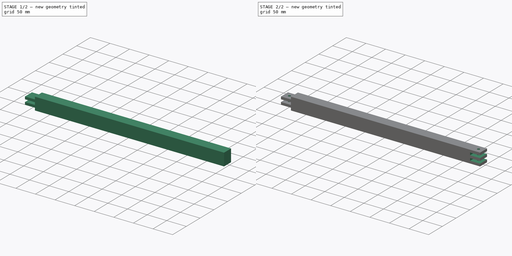
[diagram: build sequence overview — one tinted view per stage of 2, left to right]
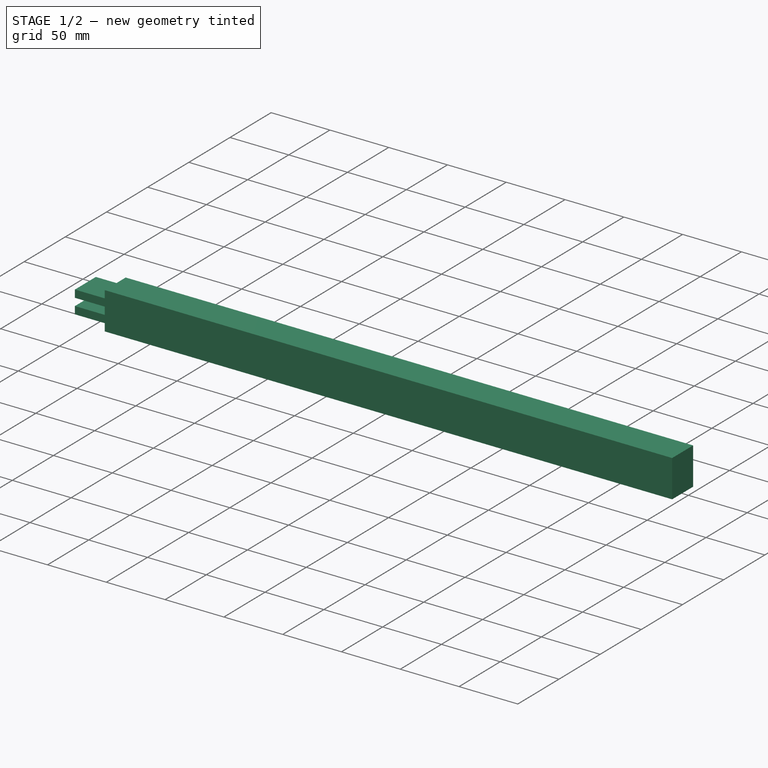
[diagram: stage 1 of 2 — iso view after this stage's code; geometry added in this stage tinted green]
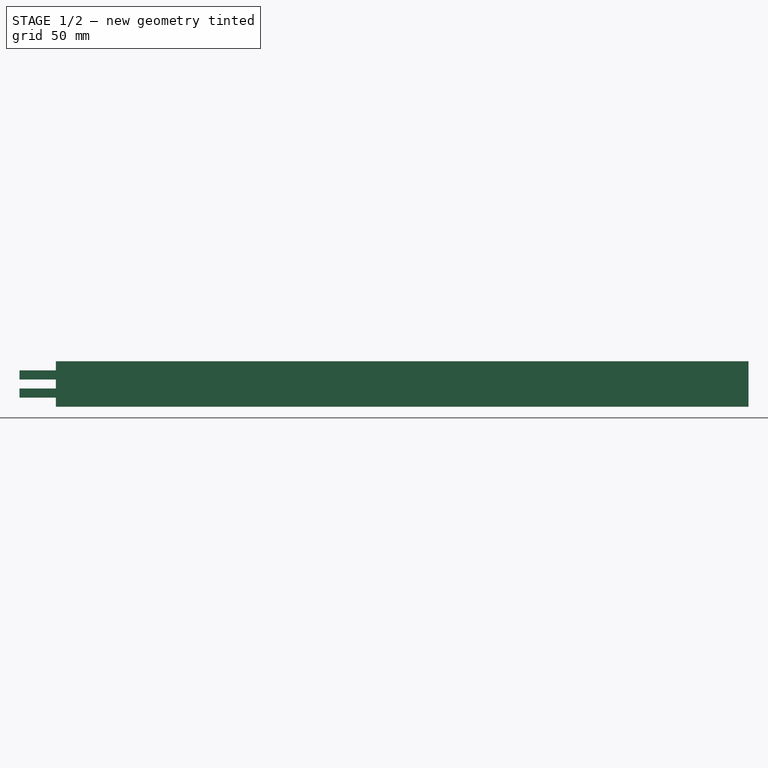
[diagram: stage 1 of 2 — front view after this stage's code; geometry added in this stage tinted green]
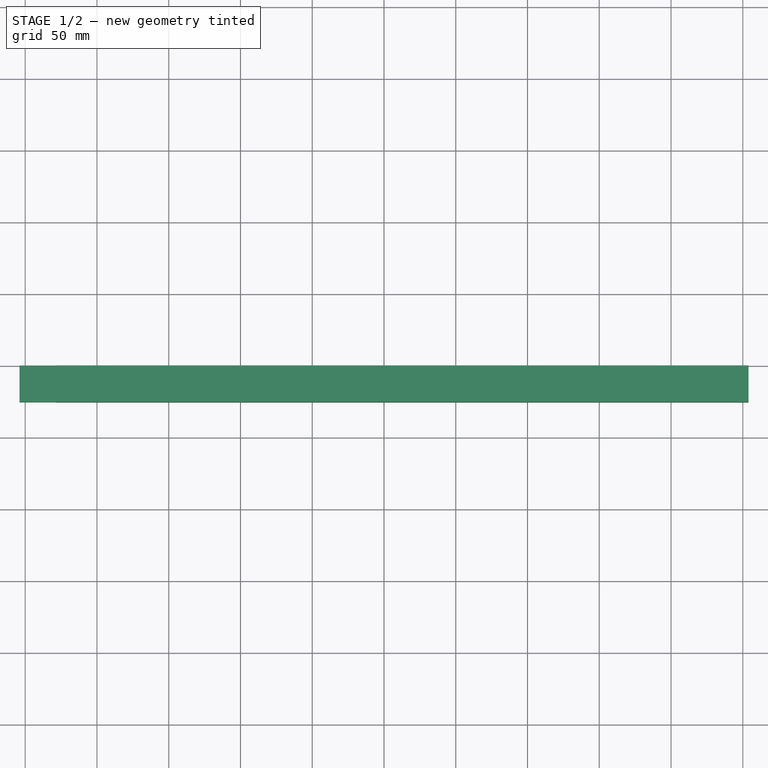
[diagram: stage 1 of 2 — top view after this stage's code; geometry added in this stage tinted green]
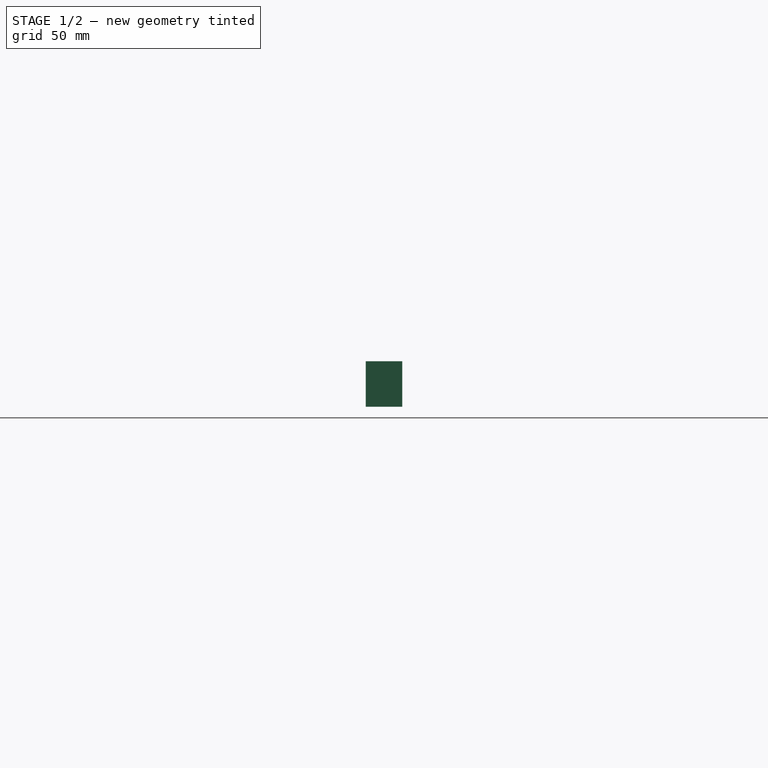
[diagram: stage 1 of 2 — right view after this stage's code; geometry added in this stage tinted green]
FCSTD DOCUMENT  (FreeCAD 0.20R29603 (Git))
Label: seat_side_bar
License: Creative Commons Attribution
LicenseURL: http://creativecommons.org/licenses/by/4.0/
objects: Sketcher::SketchObject×4, PartDesign::Pocket×3, PartDesign::Pad×1, PartDesign::Body×1
note: 13 computed .brp shape members not serialized (recipe doc carries the construction recipe); baked Part::Feature solids carry a one-line shape summary decoded from their .brp

FEATURE [Sketcher::SketchObject] Sketch
  FullyConstrained = true
  MapMode = 5
  Placement = pos=(0,0,0) rot=(1,0,0;1.5708rad)
  Support = -> [XZ_Plane]
  sketch-geometry (5):
    g0: LineSegment StartX=-254 StartY=15.875 StartZ=0 EndX=-254 EndY=-15.875 EndZ=0
    g1: LineSegment StartX=-254 StartY=-15.875 StartZ=0 EndX=254 EndY=-15.875 EndZ=0
    g2: LineSegment StartX=254 StartY=-15.875 StartZ=0 EndX=254 EndY=15.875 EndZ=0
    g3: LineSegment StartX=254 StartY=15.875 StartZ=0 EndX=-254 EndY=15.875 EndZ=0
    g4: GeomPoint X=0 Y=0 Z=0
  constraints (12):
    c: Coincident(g0,g1)
    c: Coincident(g1,g2)
    c: Coincident(g2,g3)
    c: Coincident(g3,g0)
    c: Horizontal(g1)
    c: Horizontal(g3)
    c: Vertical(g0)
    c: Vertical(g2)
    c: Symmetric(g1,g0,g4)
    c: DistanceX(g3,g3) = 508
    c: DistanceY(g0,g0) = 31.75
    c: Coincident(g-1,g4)
FEATURE [PartDesign::Pad] Pad
  Direction = (0,-1,2e-16)
  Length = 25.4
  Length2 = 10
  Placement = pos=(0,0,0) rot=(1,0,0;1.5708rad)
  Profile = -> Sketch
  ReferenceAxis = -> Sketch [N_Axis]
  Type = 0
FEATURE [Sketcher::SketchObject] Sketch001
  ExternalGeometry = -> [Pad]
  FullyConstrained = true
  MapMode = 5
  Placement = pos=(0,-25.4,5.6e-15) rot=(1,0,0;1.5708rad)
  Support = -> [Pad]
  sketch-geometry (15):
    g0: LineSegment StartX=-254 StartY=15.875 StartZ=0 EndX=-254 EndY=9.525 EndZ=0
    g1: LineSegment StartX=-254 StartY=9.525 StartZ=0 EndX=-228.6 EndY=9.525 EndZ=0
    g2: LineSegment StartX=-228.6 StartY=9.525 StartZ=0 EndX=-228.6 EndY=15.875 EndZ=0
    g3: LineSegment StartX=-228.6 StartY=15.875 StartZ=0 EndX=-254 EndY=15.875 EndZ=0
    g4: GeomPoint X=-241.3 Y=12.7 Z=0
    g5: LineSegment StartX=-254 StartY=-3.175 StartZ=0 EndX=-254 EndY=3.175 EndZ=0
    g6: LineSegment StartX=-254 StartY=3.175 StartZ=0 EndX=-228.6 EndY=3.175 EndZ=0
    g7: LineSegment StartX=-228.6 StartY=3.175 StartZ=0 EndX=-228.6 EndY=-3.175 EndZ=0
    g8: LineSegment StartX=-228.6 StartY=-3.175 StartZ=0 EndX=-254 EndY=-3.175 EndZ=0
    g9: GeomPoint X=-241.3 Y=1.43e-14 Z=0
    g10: LineSegment StartX=-254 StartY=-9.525 StartZ=0 EndX=-254 EndY=-15.875 EndZ=0
    g11: LineSegment StartX=-254 StartY=-15.875 StartZ=0 EndX=-228.6 EndY=-15.875 EndZ=0
    g12: LineSegment StartX=-228.6 StartY=-15.875 StartZ=0 EndX=-228.6 EndY=-9.525 EndZ=0
    g13: LineSegment StartX=-228.6 StartY=-9.525 StartZ=0 EndX=-254 EndY=-9.525 EndZ=0
    g14: GeomPoint X=-241.3 Y=-12.7 Z=0
  constraints (32):
    c: Coincident(g0,g1)
    c: Coincident(g1,g2)
    c: Coincident(g2,g3)
    c: Coincident(g3,g0)
    c: Horizontal(g1)
    c: Vertical(g2)
    c: Symmetric(g1,g0,g4)
    c: Tangent(g3,g-3)
    c: Tangent(g0,g-4)
    c: DistanceY(g2,g2) = 6.35
    c: DistanceX(g3,g3) = 25.4
    c: Coincident(g5,g6)
    c: Coincident(g6,g7)
    c: Coincident(g7,g8)
    c: Coincident(g8,g5)
    c: Horizontal(g6)
    c: Horizontal(g8)
    c: Symmetric(g6,g5,g9)
    c: Tangent(g-4,g5)
    c: Tangent(g7,g2)
    c: Distance(g1,g6) = 6.35
    c: Distance(g7) = 6.35
    c: Coincident(g10,g11)
    c: Coincident(g11,g12)
    c: Coincident(g12,g13)
    c: Coincident(g13,g10)
    c: Horizontal(g13)
    c: Symmetric(g11,g10,g14)
    c: Tangent(g10,g-4)
    c: Tangent(g12,g7)
    c: Tangent(g11,g-5)
    c: Distance(g12) = 6.35
FEATURE [PartDesign::Pocket] Pocket
  BaseFeature = -> Pad
  Direction = (0,1,-2e-16)
  Length = 12.7
  Length2 = 5
  Placement = pos=(0,0,0) rot=(1,0,0;1.5708rad)
  Profile = -> Sketch001
  ReferenceAxis = -> Sketch001 [N_Axis]
  Type = 1
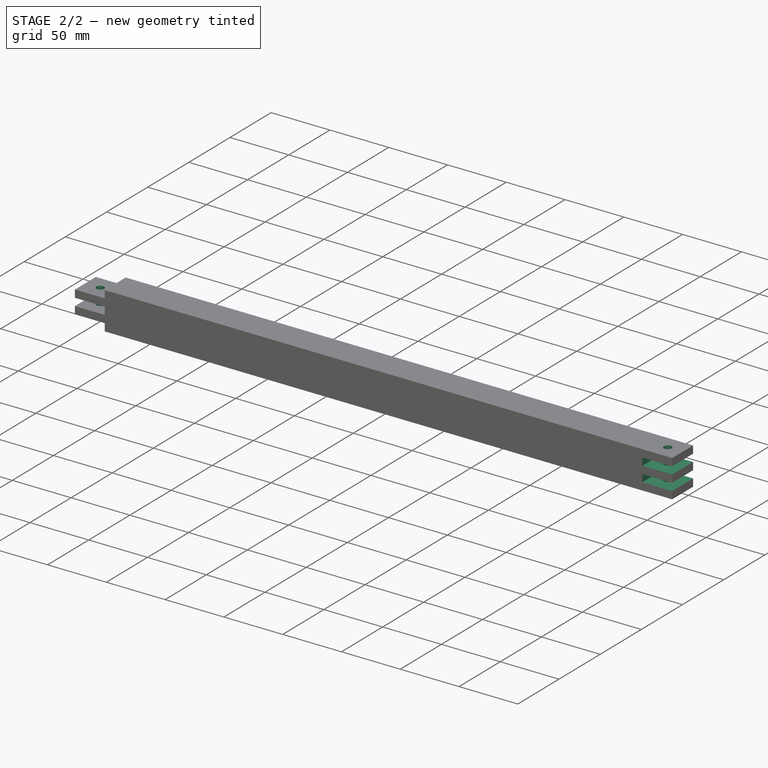
[diagram: stage 2 of 2 — iso view after this stage's code; geometry added in this stage tinted green]
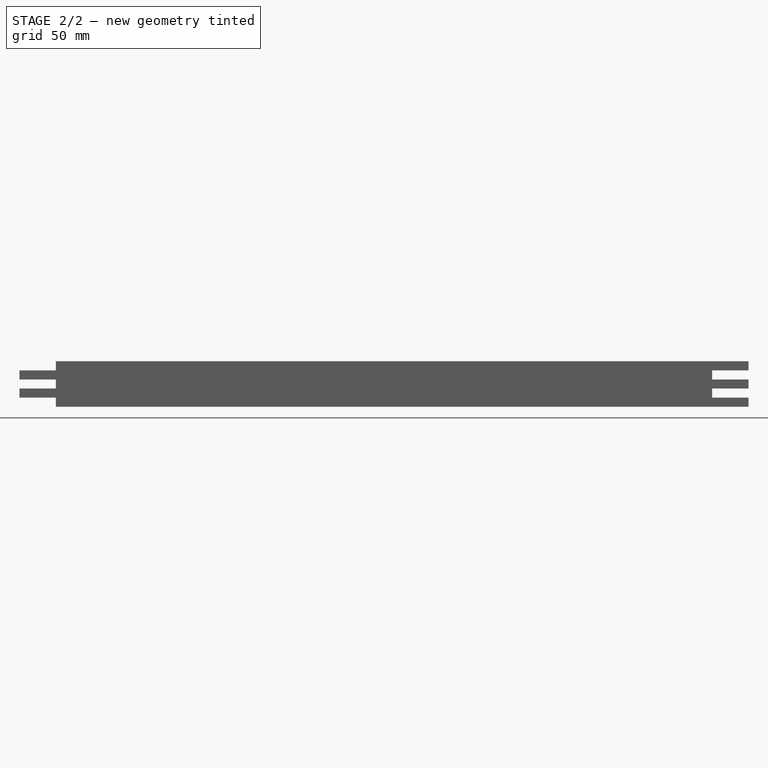
[diagram: stage 2 of 2 — front view after this stage's code; geometry added in this stage tinted green]
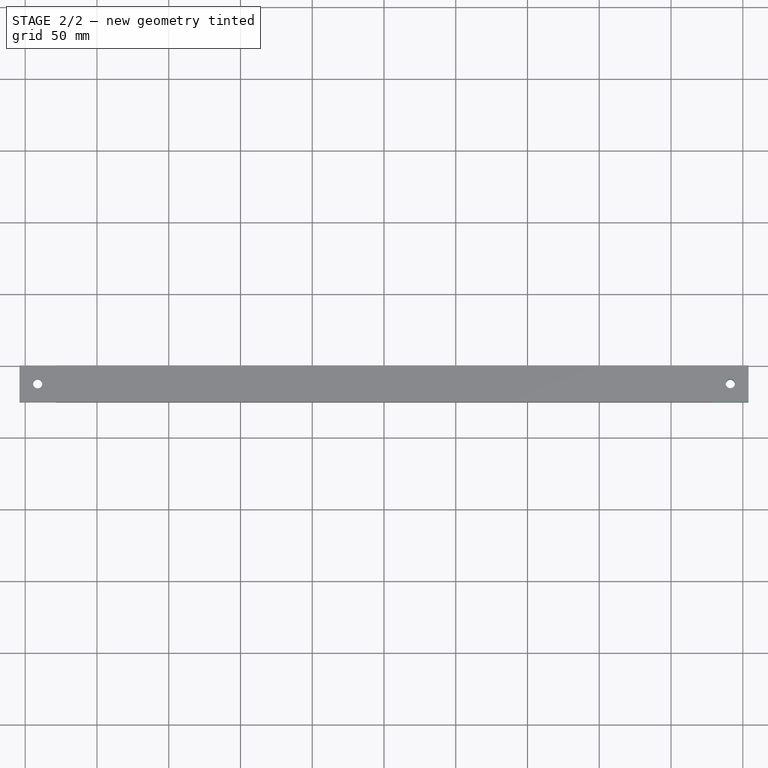
[diagram: stage 2 of 2 — top view after this stage's code; geometry added in this stage tinted green]
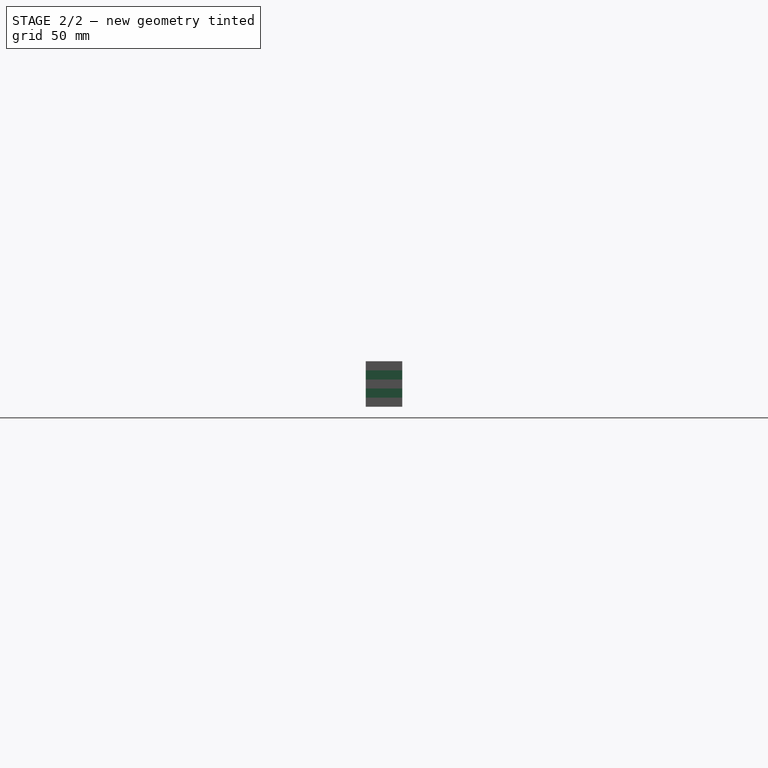
[diagram: stage 2 of 2 — right view after this stage's code; geometry added in this stage tinted green]
FEATURE [Sketcher::SketchObject] Sketch002
  ExternalGeometry = -> [Pad]
  FullyConstrained = true
  MapMode = 5
  Placement = pos=(0,-25.4,5.6e-15) rot=(1,0,0;1.5708rad)
  Support = -> [Pad]
  sketch-geometry (10):
    g0: LineSegment StartX=228.6 StartY=9.525 StartZ=0 EndX=228.6 EndY=3.175 EndZ=0
    g1: LineSegment StartX=228.6 StartY=3.175 StartZ=0 EndX=254 EndY=3.175 EndZ=0
    g2: LineSegment StartX=254 StartY=3.175 StartZ=0 EndX=254 EndY=9.525 EndZ=0
    g3: LineSegment StartX=254 StartY=9.525 StartZ=0 EndX=228.6 EndY=9.525 EndZ=0
    g4: GeomPoint X=241.3 Y=6.35 Z=0
    g5: LineSegment StartX=228.6 StartY=-3.175 StartZ=0 EndX=228.6 EndY=-9.525 EndZ=0
    g6: LineSegment StartX=228.6 StartY=-9.525 StartZ=0 EndX=254 EndY=-9.525 EndZ=0
    g7: LineSegment StartX=254 StartY=-9.525 StartZ=0 EndX=254 EndY=-3.175 EndZ=0
    g8: LineSegment StartX=254 StartY=-3.175 StartZ=0 EndX=228.6 EndY=-3.175 EndZ=0
    g9: GeomPoint X=241.3 Y=-6.35 Z=0
  constraints (25):
    c: Coincident(g0,g1)
    c: Coincident(g1,g2)
    c: Coincident(g2,g3)
    c: Coincident(g3,g0)
    c: Horizontal(g1)
    c: Horizontal(g3)
    c: Vertical(g0)
    c: Symmetric(g1,g0,g4)
    c: Coincident(g5,g6)
    c: Coincident(g6,g7)
    c: Coincident(g7,g8)
    c: Coincident(g8,g5)
    c: Horizontal(g6)
    c: Horizontal(g8)
    c: Vertical(g5)
    c: Symmetric(g6,g5,g9)
    c: Tangent(g2,g-4)
    c: Tangent(g7,g-4)
    c: DistanceY(g-3,g-3) = 0
    c: DistanceX(g3,g3) = 25.4
    c: Distance(g0,g-3) = 6.35
    c: Distance(g0) = 6.35
    c: Equal(g1,g8)
    c: Distance(g5,g0) = 6.35
    c: Distance(g5) = 6.35
FEATURE [PartDesign::Pocket] Pocket001
  BaseFeature = -> Pocket
  Direction = (0,1,-2e-16)
  Length = 5
  Length2 = 5
  Placement = pos=(0,0,0) rot=(1,0,0;1.5708rad)
  Profile = -> Sketch002
  ReferenceAxis = -> Sketch002 [N_Axis]
  Type = 1
FEATURE [Sketcher::SketchObject] Sketch003
  ExternalGeometry = -> [Pocket001]
  FullyConstrained = true
  MapMode = 5
  Placement = pos=(0,-3.5e-15,-15.875) rot=(1,0,0;3.14159rad)
  Support = -> [Pocket001]
  sketch-geometry (4):
    g0: Circle CenterX=-241.3 CenterY=12.7 CenterZ=0 NormalX=0 NormalY=0 NormalZ=1 AngleXU=0 Radius=3.175
    g1: LineSegment StartX=-254 StartY=25.4 StartZ=0 EndX=-228.6 EndY=-3.6e-15 EndZ=0
    g2: LineSegment StartX=-228.6 StartY=25.4 StartZ=0 EndX=-254 EndY=0 EndZ=0
    g3: Circle CenterX=241.3 CenterY=12.7 CenterZ=0 NormalX=0 NormalY=0 NormalZ=1 AngleXU=0 Radius=3.175
  constraints (9):
    c: Coincident(g-6,g2)
    c: Coincident(g2,g-5)
    c: Coincident(g-4,g1)
    c: Coincident(g-6,g1)
    c: PointOnObject(g0,g2)
    c: PointOnObject(g0,g1)
    c: Diameter(g0) = 6.35
    c: Diameter(g3) = 6.35
    c: Symmetric(g0,g3,g-2)
FEATURE [PartDesign::Pocket] Pocket002
  BaseFeature = -> Pocket001
  Direction = (0,2e-16,1)
  Length = 5
  Length2 = 5
  Placement = pos=(0,0,0) rot=(1,0,0;1.5708rad)
  Profile = -> Sketch003
  ReferenceAxis = -> Sketch003 [N_Axis]
  Type = 1
FEATURE [PartDesign::Body] Body
  Group = -> [Sketch,Pad,Sketch001,Pocket,Sketch002,Pocket001,Sketch003,Pocket002]
  Origin = -> Origin
  Tip = -> Pocket002
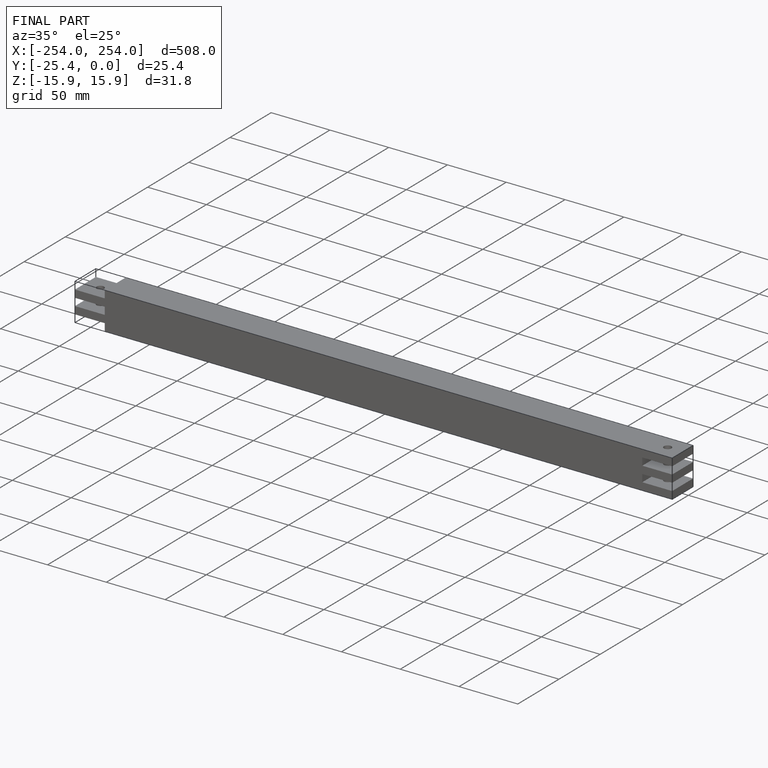
[diagram: finished part — iso view with bounding-box wireframe]
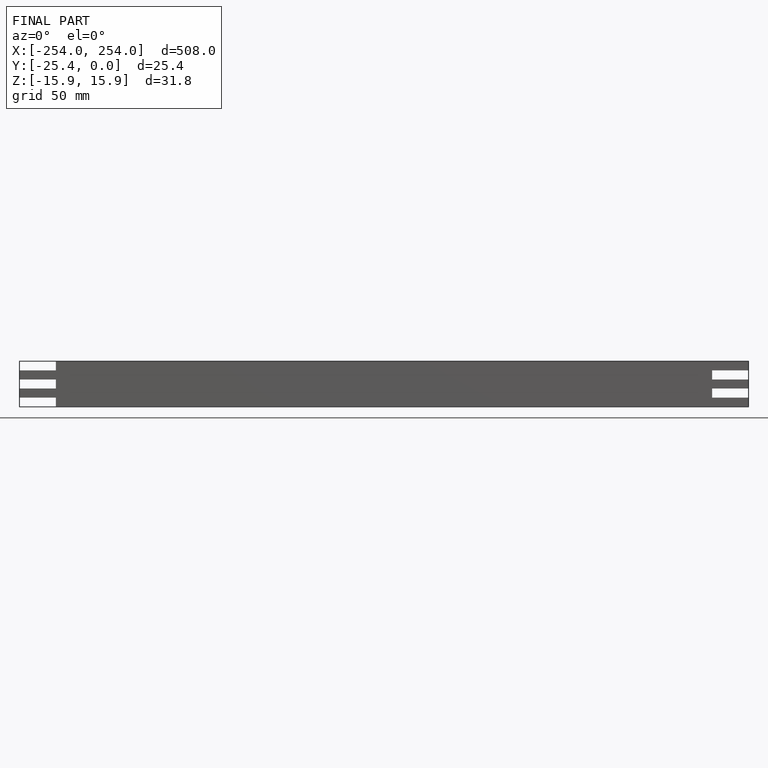
[diagram: finished part — front view with bounding-box wireframe]
